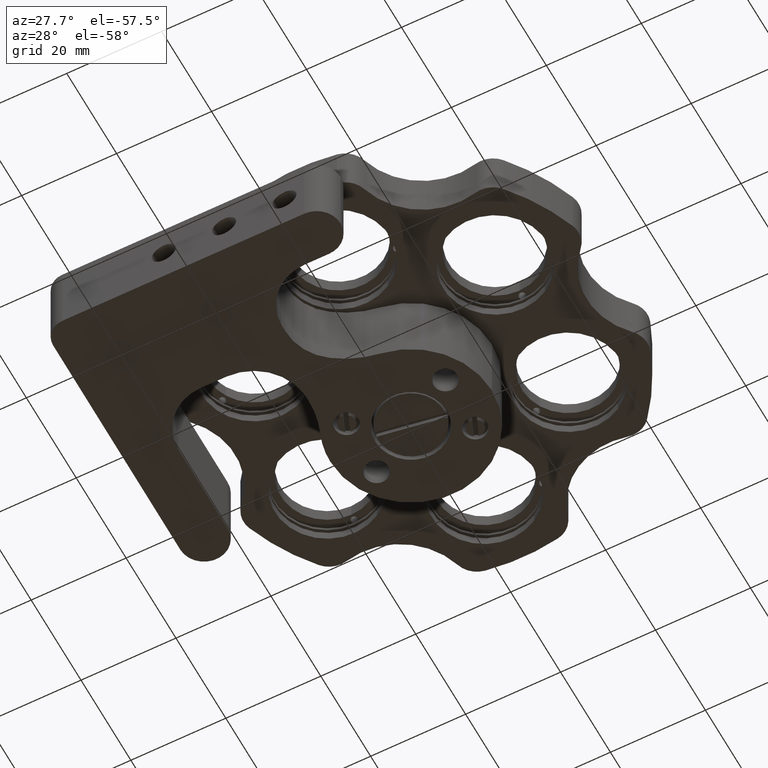
[diagram: clean part render]
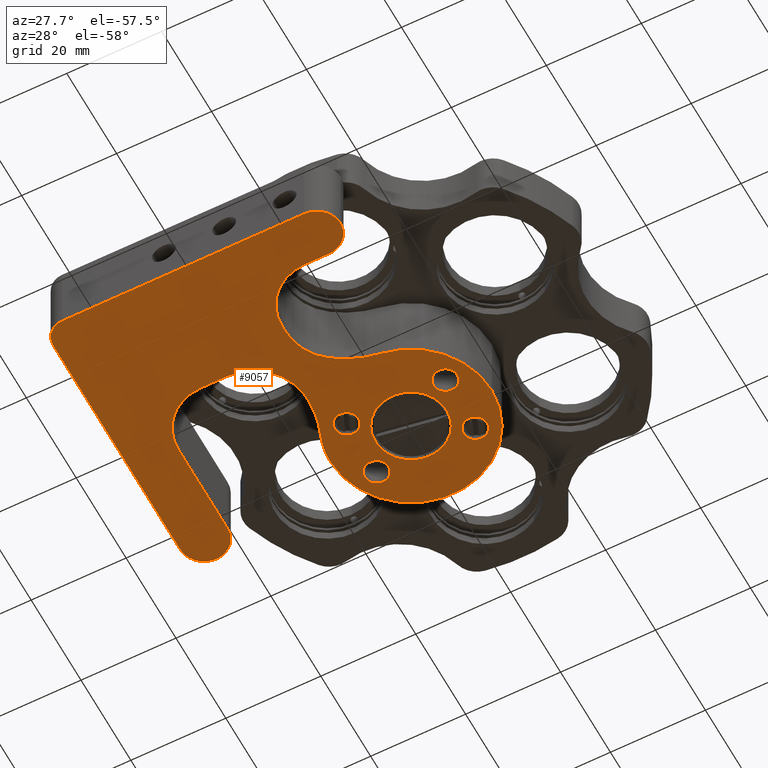
[diagram: same view with one face highlighted and labeled with its STEP entity id]
A machine part, auxiliary view. The second image highlights one B-rep face of the part: STEP entity #9057.
In plain terms, the highlighted planar face has unit normal (-0, 0, 1).
Its self-contained STEP definition (entity closure, byte-faithful):
#63 = ORIENTED_EDGE ( 'NONE', *, *, #2609, .T. ) ;
#192 = EDGE_LOOP ( 'NONE', ( #11659, #6894 ) ) ;
#197 = CARTESIAN_POINT ( 'NONE',  ( 2.398145116543167100, -16.83000000000002000, -16.00000000000000000 ) ) ;
#310 = EDGE_CURVE ( 'NONE', #6319, #8687, #5445, .T. ) ;
#334 = DIRECTION ( 'NONE',  ( 1.000000000000000000, 0.0000000000000000000, 0.0000000000000000000 ) ) ;
#422 = DIRECTION ( 'NONE',  ( -0.0000000000000000000, 0.0000000000000000000, 1.000000000000000000 ) ) ;
#460 = ORIENTED_EDGE ( 'NONE', *, *, #5215, .T. ) ;
#523 = AXIS2_PLACEMENT_3D ( 'NONE', #4940, #15066, #6662 ) ;
#709 = VECTOR ( 'NONE', #2451, 1000.000000000000000 ) ;
#846 = CARTESIAN_POINT ( 'NONE',  ( -12.89230484541325300, 6.000000000000015100, -16.00000000000000000 ) ) ;
#884 = AXIS2_PLACEMENT_3D ( 'NONE', #13796, #1732, #12693 ) ;
#964 = VERTEX_POINT ( 'NONE', #2197 ) ;
#995 = EDGE_CURVE ( 'NONE', #3702, #964, #6166, .T. ) ;
#1037 = DIRECTION ( 'NONE',  ( -0.0000000000000000000, 0.0000000000000000000, 1.000000000000000000 ) ) ;
#1073 = EDGE_CURVE ( 'NONE', #2167, #8659, #6355, .T. ) ;
#1101 = ORIENTED_EDGE ( 'NONE', *, *, #3700, .T. ) ;
#1111 = CIRCLE ( 'NONE', #11031, 9.999999999999998200 ) ;
#1204 = VECTOR ( 'NONE', #9547, 1000.000000000000000 ) ;
#1334 = EDGE_LOOP ( 'NONE', ( #1101, #63 ) ) ;
#1365 = ORIENTED_EDGE ( 'NONE', *, *, #11277, .F. ) ;
#1473 = CARTESIAN_POINT ( 'NONE',  ( -14.33791815153540700, -13.78068855385882700, -16.00000000000000000 ) ) ;
#1507 = AXIS2_PLACEMENT_3D ( 'NONE', #5364, #4211, #15018 ) ;
#1562 = CARTESIAN_POINT ( 'NONE',  ( 10.39230484541325700, -6.000000000000015100, -16.00000000000000000 ) ) ;
#1631 = CARTESIAN_POINT ( 'NONE',  ( -17.00000000000002100, 2.344068235651494100E-014, -16.00000000000000000 ) ) ;
#1659 = VERTEX_POINT ( 'NONE', #9927 ) ;
#1730 = CARTESIAN_POINT ( 'NONE',  ( -50.79999999999994700, -91.60983450373436200, -16.00000000000000000 ) ) ;
#1732 = DIRECTION ( 'NONE',  ( -0.0000000000000000000, -0.0000000000000000000, 1.000000000000000000 ) ) ;
#1836 = CARTESIAN_POINT ( 'NONE',  ( -40.80000000000005400, 4.200000000000009100, -16.00000000000000000 ) ) ;
#1891 = DIRECTION ( 'NONE',  ( 1.000000000000000000, 0.0000000000000000000, 0.0000000000000000000 ) ) ;
#1899 = ORIENTED_EDGE ( 'NONE', *, *, #10775, .F. ) ;
#1958 = CARTESIAN_POINT ( 'NONE',  ( 4.199999999999978000, -50.79999999999997600, -16.00000000000000000 ) ) ;
#1979 = DIRECTION ( 'NONE',  ( 1.000000000000000000, 0.0000000000000000000, 0.0000000000000000000 ) ) ;
#2011 = DIRECTION ( 'NONE',  ( -0.0000000000000000000, 0.0000000000000000000, 1.000000000000000000 ) ) ;
#2099 = DIRECTION ( 'NONE',  ( -0.0000000000000000000, 0.0000000000000000000, 1.000000000000000000 ) ) ;
#2150 = ORIENTED_EDGE ( 'NONE', *, *, #15518, .T. ) ;
#2167 = VERTEX_POINT ( 'NONE', #13925 ) ;
#2197 = CARTESIAN_POINT ( 'NONE',  ( -11.00000000000002300, -29.54287285833695600, -16.00000000000000000 ) ) ;
#2299 = FACE_OUTER_BOUND ( 'NONE', #10351, .T. ) ;
#2311 = FACE_BOUND ( 'NONE', #13762, .T. ) ;
#2338 = CARTESIAN_POINT ( 'NONE',  ( -16.91161726340148500, -91.60983450373431900, -16.00000000000000000 ) ) ;
#2339 = VECTOR ( 'NONE', #3246, 1000.000000000000000 ) ;
#2413 = EDGE_CURVE ( 'NONE', #8687, #6319, #10198, .T. ) ;
#2451 = DIRECTION ( 'NONE',  ( 0.0000000000000000000, 1.000000000000000000, -0.0000000000000000000 ) ) ;
#2517 = CIRCLE ( 'NONE', #7314, 11.00000000000001100 ) ;
#2524 = EDGE_CURVE ( 'NONE', #14079, #8833, #8132, .T. ) ;
#2566 = VERTEX_POINT ( 'NONE', #1836 ) ;
#2609 = EDGE_CURVE ( 'NONE', #9881, #7876, #12266, .T. ) ;
#2656 = DIRECTION ( 'NONE',  ( -0.0000000000000000000, 0.0000000000000000000, 1.000000000000000000 ) ) ;
#2763 = VERTEX_POINT ( 'NONE', #11732 ) ;
#3105 = EDGE_CURVE ( 'NONE', #1659, #14371, #9805, .T. ) ;
#3130 = DIRECTION ( 'NONE',  ( -0.0000000000000000000, 0.0000000000000000000, 1.000000000000000000 ) ) ;
#3151 = AXIS2_PLACEMENT_3D ( 'NONE', #12345, #11232, #12295 ) ;
#3236 = AXIS2_PLACEMENT_3D ( 'NONE', #9312, #2099, #14263 ) ;
#3246 = DIRECTION ( 'NONE',  ( 0.0000000000000000000, -1.000000000000000000, 0.0000000000000000000 ) ) ;
#3254 = ORIENTED_EDGE ( 'NONE', *, *, #14656, .T. ) ;
#3261 = CIRCLE ( 'NONE', #8105, 17.00000000000003600 ) ;
#3310 = CARTESIAN_POINT ( 'NONE',  ( -15.77688131286762600, -6.331667713935137200, -16.00000000000000000 ) ) ;
#3362 = DIRECTION ( 'NONE',  ( 1.000000000000000000, 0.0000000000000000000, 0.0000000000000000000 ) ) ;
#3423 = FACE_BOUND ( 'NONE', #4272, .T. ) ;
#3434 = DIRECTION ( 'NONE',  ( 1.000000000000000000, 0.0000000000000000000, 0.0000000000000000000 ) ) ;
#3605 = CARTESIAN_POINT ( 'NONE',  ( -11.00000000000002300, -91.60983450373431900, -16.00000000000000000 ) ) ;
#3650 = CIRCLE ( 'NONE', #10840, 2.499999999999996900 ) ;
#3654 = CARTESIAN_POINT ( 'NONE',  ( -16.91161726340155300, -40.80000000000001100, -16.00000000000000000 ) ) ;
#3657 = DIRECTION ( 'NONE',  ( -0.0000000000000000000, -0.0000000000000000000, 1.000000000000000000 ) ) ;
#3669 = AXIS2_PLACEMENT_3D ( 'NONE', #5195, #13505, #13617 ) ;
#3672 = CARTESIAN_POINT ( 'NONE',  ( -7.500000000000000000, 0.0000000000000000000, -16.00000000000000000 ) ) ;
#3700 = EDGE_CURVE ( 'NONE', #7876, #9881, #13170, .T. ) ;
#3702 = VERTEX_POINT ( 'NONE', #7183 ) ;
#3736 = EDGE_CURVE ( 'NONE', #1659, #11495, #14501, .T. ) ;
#3755 = CARTESIAN_POINT ( 'NONE',  ( -1.000000000000021800, -40.79999999999999000, -16.00000000000000000 ) ) ;
#3849 = EDGE_CURVE ( 'NONE', #2763, #11495, #1111, .T. ) ;
#3911 = VERTEX_POINT ( 'NONE', #1958 ) ;
#4047 = CARTESIAN_POINT ( 'NONE',  ( 4.199999999999981500, -45.79999999999999000, -16.00000000000000000 ) ) ;
#4076 = AXIS2_PLACEMENT_3D ( 'NONE', #9096, #12506, #7665 ) ;
#4211 = DIRECTION ( 'NONE',  ( -0.0000000000000000000, -0.0000000000000000000, 1.000000000000000000 ) ) ;
#4272 = EDGE_LOOP ( 'NONE', ( #11537, #12151 ) ) ;
#4298 = DIRECTION ( 'NONE',  ( 1.000000000000000000, 2.721134864277345600E-016, 0.0000000000000000000 ) ) ;
#4592 = CARTESIAN_POINT ( 'NONE',  ( -30.80000000000005800, -25.64999999999993500, -16.00000000000000000 ) ) ;
#4628 = VERTEX_POINT ( 'NONE', #9700 ) ;
#4677 = VERTEX_POINT ( 'NONE', #6521 ) ;
#4828 = EDGE_CURVE ( 'NONE', #4860, #12820, #3650, .T. ) ;
#4860 = VERTEX_POINT ( 'NONE', #8270 ) ;
#4869 = DIRECTION ( 'NONE',  ( 0.0000000000000000000, 0.0000000000000000000, -1.000000000000000000 ) ) ;
#4940 = CARTESIAN_POINT ( 'NONE',  ( 0.0000000000000000000, 0.0000000000000000000, -16.00000000000000000 ) ) ;
#4973 = VERTEX_POINT ( 'NONE', #3672 ) ;
#5076 = AXIS2_PLACEMENT_3D ( 'NONE', #7241, #3657, #13592 ) ;
#5104 = FACE_BOUND ( 'NONE', #10155, .T. ) ;
#5195 = CARTESIAN_POINT ( 'NONE',  ( -34.33791815153536900, -13.78068855385882700, -16.00000000000000000 ) ) ;
#5215 = EDGE_CURVE ( 'NONE', #10152, #11450, #15523, .T. ) ;
#5233 = DIRECTION ( 'NONE',  ( -0.0000000000000000000, 0.0000000000000000000, 1.000000000000000000 ) ) ;
#5364 = CARTESIAN_POINT ( 'NONE',  ( -10.39230484541325700, 6.000000000000015100, -16.00000000000000000 ) ) ;
#5371 = EDGE_CURVE ( 'NONE', #10979, #964, #2517, .T. ) ;
#5445 = CIRCLE ( 'NONE', #884, 2.499999999999996900 ) ;
#5488 = FACE_BOUND ( 'NONE', #1334, .T. ) ;
#5637 = CARTESIAN_POINT ( 'NONE',  ( 10.39230484541325700, 6.000000000000015100, -16.00000000000000000 ) ) ;
#5660 = CARTESIAN_POINT ( 'NONE',  ( -16.91161726340149600, -50.79999999999998300, -16.00000000000000000 ) ) ;
#5721 = CARTESIAN_POINT ( 'NONE',  ( -40.80000000000005400, -91.60983450373431900, -16.00000000000000000 ) ) ;
#5909 = CIRCLE ( 'NONE', #12986, 3.999999999999996400 ) ;
#5915 = AXIS2_PLACEMENT_3D ( 'NONE', #14147, #8096, #1979 ) ;
#6166 = LINE ( 'NONE', #3605, #709 ) ;
#6178 = CARTESIAN_POINT ( 'NONE',  ( 4.199999999999978000, -40.79999999999998300, -16.00000000000000000 ) ) ;
#6256 = DIRECTION ( 'NONE',  ( 1.000000000000000000, 0.0000000000000000000, 0.0000000000000000000 ) ) ;
#6319 = VERTEX_POINT ( 'NONE', #7654 ) ;
#6339 = CARTESIAN_POINT ( 'NONE',  ( -10.39230484541325700, -6.000000000000015100, -16.00000000000000000 ) ) ;
#6355 = CIRCLE ( 'NONE', #12412, 2.499999999999996900 ) ;
#6387 = CARTESIAN_POINT ( 'NONE',  ( -6.385338524956366300, -20.34111111111102200, -16.00000000000000000 ) ) ;
#6474 = DIRECTION ( 'NONE',  ( -0.0000000000000000000, 0.0000000000000000000, 1.000000000000000000 ) ) ;
#6484 = CARTESIAN_POINT ( 'NONE',  ( -16.91161726340140300, -25.64999999999994900, -16.00000000000000000 ) ) ;
#6518 = VERTEX_POINT ( 'NONE', #197 ) ;
#6521 = CARTESIAN_POINT ( 'NONE',  ( -46.80000000000000400, -50.79999999999999000, -16.00000000000000000 ) ) ;
#6546 = EDGE_CURVE ( 'NONE', #12557, #15196, #8395, .T. ) ;
#6558 = CARTESIAN_POINT ( 'NONE',  ( -7.892304845413259600, 6.000000000000015100, -16.00000000000000000 ) ) ;
#6584 = CARTESIAN_POINT ( 'NONE',  ( 7.892304845413259600, -6.000000000000015100, -16.00000000000000000 ) ) ;
#6599 = CARTESIAN_POINT ( 'NONE',  ( -7.892304845413259600, -6.000000000000015100, -16.00000000000000000 ) ) ;
#6623 = CARTESIAN_POINT ( 'NONE',  ( -14.43143337034554600, -15.71249176750572500, -16.00000000000000000 ) ) ;
#6662 = DIRECTION ( 'NONE',  ( -1.000000000000000000, 0.0000000000000000000, 0.0000000000000000000 ) ) ;
#6676 = ORIENTED_EDGE ( 'NONE', *, *, #7430, .T. ) ;
#6838 = ORIENTED_EDGE ( 'NONE', *, *, #3105, .T. ) ;
#6853 = CIRCLE ( 'NONE', #10518, 4.999999999999997300 ) ;
#6894 = ORIENTED_EDGE ( 'NONE', *, *, #1073, .T. ) ;
#6902 = CARTESIAN_POINT ( 'NONE',  ( -30.80000000000005400, -15.64999999999992800, -16.00000000000000000 ) ) ;
#6934 = DIRECTION ( 'NONE',  ( 1.000000000000000000, 0.0000000000000000000, 0.0000000000000000000 ) ) ;
#6986 = CARTESIAN_POINT ( 'NONE',  ( 4.199999999999981500, -45.79999999999999000, -16.00000000000000000 ) ) ;
#7013 = EDGE_CURVE ( 'NONE', #8833, #4677, #5909, .T. ) ;
#7015 = FACE_BOUND ( 'NONE', #192, .T. ) ;
#7035 = ORIENTED_EDGE ( 'NONE', *, *, #8677, .F. ) ;
#7110 = CARTESIAN_POINT ( 'NONE',  ( -46.80000000000000400, -46.79999999999999700, -16.00000000000000000 ) ) ;
#7183 = CARTESIAN_POINT ( 'NONE',  ( -11.00000000000002300, -30.79999999999998600, -16.00000000000000000 ) ) ;
#7241 = CARTESIAN_POINT ( 'NONE',  ( -10.39230484541325700, 6.000000000000015100, -16.00000000000000000 ) ) ;
#7273 = ORIENTED_EDGE ( 'NONE', *, *, #12232, .T. ) ;
#7314 = AXIS2_PLACEMENT_3D ( 'NONE', #14814, #422, #10011 ) ;
#7360 = DIRECTION ( 'NONE',  ( 1.000000000000000000, 0.0000000000000000000, 0.0000000000000000000 ) ) ;
#7390 = AXIS2_PLACEMENT_3D ( 'NONE', #8309, #9498, #3434 ) ;
#7430 = EDGE_CURVE ( 'NONE', #2566, #2763, #9491, .T. ) ;
#7562 = DIRECTION ( 'NONE',  ( -0.0000000000000000000, -0.0000000000000000000, 1.000000000000000000 ) ) ;
#7654 = CARTESIAN_POINT ( 'NONE',  ( 12.89230484541325300, -6.000000000000015100, -16.00000000000000000 ) ) ;
#7665 = DIRECTION ( 'NONE',  ( 1.000000000000000000, 0.0000000000000000000, 0.0000000000000000000 ) ) ;
#7831 = ORIENTED_EDGE ( 'NONE', *, *, #2524, .F. ) ;
#7862 = ORIENTED_EDGE ( 'NONE', *, *, #3736, .F. ) ;
#7876 = VERTEX_POINT ( 'NONE', #6558 ) ;
#7888 = ORIENTED_EDGE ( 'NONE', *, *, #3849, .T. ) ;
#7901 = DIRECTION ( 'NONE',  ( -0.0000000000000000000, -0.0000000000000000000, 1.000000000000000000 ) ) ;
#7916 = DIRECTION ( 'NONE',  ( -1.000000000000000000, 1.280238727658143600E-015, 0.0000000000000000000 ) ) ;
#7945 = CIRCLE ( 'NONE', #3236, 19.99999999999996100 ) ;
#7948 = EDGE_CURVE ( 'NONE', #13621, #11450, #13626, .T. ) ;
#8096 = DIRECTION ( 'NONE',  ( -0.0000000000000000000, 0.0000000000000000000, 1.000000000000000000 ) ) ;
#8105 = AXIS2_PLACEMENT_3D ( 'NONE', #11137, #5233, #13657 ) ;
#8120 = ORIENTED_EDGE ( 'NONE', *, *, #4828, .T. ) ;
#8132 = LINE ( 'NONE', #1730, #8525 ) ;
#8270 = CARTESIAN_POINT ( 'NONE',  ( -12.89230484541325300, -6.000000000000015100, -16.00000000000000000 ) ) ;
#8298 = DIRECTION ( 'NONE',  ( -0.0000000000000000000, 0.0000000000000000000, 1.000000000000000000 ) ) ;
#8309 = CARTESIAN_POINT ( 'NONE',  ( -25.37999999999998500, -14.64999999999992400, -16.00000000000000000 ) ) ;
#8395 = LINE ( 'NONE', #3654, #1204 ) ;
#8525 = VECTOR ( 'NONE', #9015, 1000.000000000000000 ) ;
#8659 = VERTEX_POINT ( 'NONE', #13688 ) ;
#8677 = EDGE_CURVE ( 'NONE', #2566, #14079, #10778, .T. ) ;
#8687 = VERTEX_POINT ( 'NONE', #6584 ) ;
#8811 = DIRECTION ( 'NONE',  ( 1.000000000000000000, 0.0000000000000000000, 0.0000000000000000000 ) ) ;
#8823 = AXIS2_PLACEMENT_3D ( 'NONE', #5637, #11747, #3362 ) ;
#8833 = VERTEX_POINT ( 'NONE', #9124 ) ;
#9015 = DIRECTION ( 'NONE',  ( 1.088453945710937700E-015, -1.000000000000000000, 0.0000000000000000000 ) ) ;
#9057 = ADVANCED_FACE ( 'NONE', ( #7015, #3423, #2311, #5488, #5104, #2299 ), #15197, .F. ) ;
#9083 = AXIS2_PLACEMENT_3D ( 'NONE', #13799, #6474, #8811 ) ;
#9096 = CARTESIAN_POINT ( 'NONE',  ( -34.33791815153536900, -13.78068855385882700, -16.00000000000000000 ) ) ;
#9124 = CARTESIAN_POINT ( 'NONE',  ( -50.79999999999999700, -46.79999999999999700, -16.00000000000000000 ) ) ;
#9312 = CARTESIAN_POINT ( 'NONE',  ( 5.219492312476295300, -36.62999999999998800, -16.00000000000000000 ) ) ;
#9350 = ORIENTED_EDGE ( 'NONE', *, *, #13697, .F. ) ;
#9391 = AXIS2_PLACEMENT_3D ( 'NONE', #1562, #14809, #6256 ) ;
#9447 = CARTESIAN_POINT ( 'NONE',  ( 7.500000000000000000, 9.184850993605147900E-016, -16.00000000000000000 ) ) ;
#9475 = DIRECTION ( 'NONE',  ( 1.000000000000000000, 0.0000000000000000000, 0.0000000000000000000 ) ) ;
#9484 = CIRCLE ( 'NONE', #523, 7.500000000000000000 ) ;
#9491 = LINE ( 'NONE', #5721, #2339 ) ;
#9498 = DIRECTION ( 'NONE',  ( -0.0000000000000000000, 0.0000000000000000000, 1.000000000000000000 ) ) ;
#9547 = DIRECTION ( 'NONE',  ( -1.000000000000000000, -1.334402673828312100E-015, 0.0000000000000000000 ) ) ;
#9700 = CARTESIAN_POINT ( 'NONE',  ( 9.199999999999979700, -45.79999999999999000, -16.00000000000000000 ) ) ;
#9745 = CARTESIAN_POINT ( 'NONE',  ( -50.80000000000005400, 4.200000000000009100, -16.00000000000000000 ) ) ;
#9805 = CIRCLE ( 'NONE', #7390, 11.00000000000001600 ) ;
#9824 = DIRECTION ( 'NONE',  ( 1.000000000000000000, 0.0000000000000000000, 0.0000000000000000000 ) ) ;
#9829 = CIRCLE ( 'NONE', #3151, 17.00000000000003600 ) ;
#9881 = VERTEX_POINT ( 'NONE', #846 ) ;
#9916 = AXIS2_PLACEMENT_3D ( 'NONE', #14568, #4869, #14619 ) ;
#9927 = CARTESIAN_POINT ( 'NONE',  ( -25.37999999999998500, -25.64999999999994200, -16.00000000000000000 ) ) ;
#10011 = DIRECTION ( 'NONE',  ( 1.000000000000000000, 0.0000000000000000000, 0.0000000000000000000 ) ) ;
#10152 = VERTEX_POINT ( 'NONE', #1473 ) ;
#10155 = EDGE_LOOP ( 'NONE', ( #11597, #1365 ) ) ;
#10198 = CIRCLE ( 'NONE', #9391, 2.499999999999996900 ) ;
#10340 = CARTESIAN_POINT ( 'NONE',  ( 17.00000000000005000, 2.135878279796443700E-014, -16.00000000000000000 ) ) ;
#10351 = EDGE_LOOP ( 'NONE', ( #7831, #7035, #6676, #7888, #7862, #6838, #7273, #460, #15435, #10841, #12563, #11294, #14988, #11764, #2150, #14665, #1899, #9350, #13028, #13908 ) ) ;
#10364 = VECTOR ( 'NONE', #7916, 1000.000000000000000 ) ;
#10410 = DIRECTION ( 'NONE',  ( 1.000000000000000000, 0.0000000000000000000, 0.0000000000000000000 ) ) ;
#10439 = DIRECTION ( 'NONE',  ( 1.000000000000000000, 0.0000000000000000000, 0.0000000000000000000 ) ) ;
#10518 = AXIS2_PLACEMENT_3D ( 'NONE', #6986, #12940, #6934 ) ;
#10531 = CIRCLE ( 'NONE', #11855, 10.00000000000000200 ) ;
#10586 = LINE ( 'NONE', #5660, #12283 ) ;
#10659 = EDGE_CURVE ( 'NONE', #6518, #10979, #7945, .T. ) ;
#10775 = EDGE_CURVE ( 'NONE', #4628, #12557, #6853, .T. ) ;
#10778 = CIRCLE ( 'NONE', #9083, 4.999999999999997300 ) ;
#10840 = AXIS2_PLACEMENT_3D ( 'NONE', #15122, #7901, #1891 ) ;
#10841 = ORIENTED_EDGE ( 'NONE', *, *, #10960, .F. ) ;
#10960 = EDGE_CURVE ( 'NONE', #11311, #13621, #3261, .T. ) ;
#10979 = VERTEX_POINT ( 'NONE', #6387 ) ;
#11031 = AXIS2_PLACEMENT_3D ( 'NONE', #6902, #2011, #10439 ) ;
#11137 = CARTESIAN_POINT ( 'NONE',  ( 1.431146867680865900E-014, 2.135878279796443700E-014, -16.00000000000000000 ) ) ;
#11232 = DIRECTION ( 'NONE',  ( -0.0000000000000000000, 0.0000000000000000000, 1.000000000000000000 ) ) ;
#11277 = EDGE_CURVE ( 'NONE', #14898, #4973, #9484, .T. ) ;
#11294 = ORIENTED_EDGE ( 'NONE', *, *, #10659, .T. ) ;
#11311 = VERTEX_POINT ( 'NONE', #10340 ) ;
#11445 = AXIS2_PLACEMENT_3D ( 'NONE', #6339, #7562, #334 ) ;
#11450 = VERTEX_POINT ( 'NONE', #3310 ) ;
#11469 = EDGE_CURVE ( 'NONE', #8659, #2167, #15336, .T. ) ;
#11495 = VERTEX_POINT ( 'NONE', #4592 ) ;
#11537 = ORIENTED_EDGE ( 'NONE', *, *, #310, .T. ) ;
#11597 = ORIENTED_EDGE ( 'NONE', *, *, #12522, .F. ) ;
#11659 = ORIENTED_EDGE ( 'NONE', *, *, #11469, .T. ) ;
#11732 = CARTESIAN_POINT ( 'NONE',  ( -40.80000000000005400, -15.64999999999992800, -16.00000000000000000 ) ) ;
#11747 = DIRECTION ( 'NONE',  ( -0.0000000000000000000, -0.0000000000000000000, 1.000000000000000000 ) ) ;
#11764 = ORIENTED_EDGE ( 'NONE', *, *, #995, .F. ) ;
#11855 = AXIS2_PLACEMENT_3D ( 'NONE', #14784, #2656, #7360 ) ;
#12151 = ORIENTED_EDGE ( 'NONE', *, *, #2413, .T. ) ;
#12232 = EDGE_CURVE ( 'NONE', #14371, #10152, #14554, .T. ) ;
#12266 = CIRCLE ( 'NONE', #1507, 2.499999999999996900 ) ;
#12283 = VECTOR ( 'NONE', #4298, 1000.000000000000000 ) ;
#12295 = DIRECTION ( 'NONE',  ( 1.000000000000000000, 0.0000000000000000000, 0.0000000000000000000 ) ) ;
#12345 = CARTESIAN_POINT ( 'NONE',  ( 1.431146867680865900E-014, 2.135878279796443700E-014, -16.00000000000000000 ) ) ;
#12390 = EDGE_CURVE ( 'NONE', #4677, #3911, #10586, .T. ) ;
#12412 = AXIS2_PLACEMENT_3D ( 'NONE', #14560, #13383, #9824 ) ;
#12506 = DIRECTION ( 'NONE',  ( -0.0000000000000000000, 0.0000000000000000000, 1.000000000000000000 ) ) ;
#12522 = EDGE_CURVE ( 'NONE', #4973, #14898, #13407, .T. ) ;
#12556 = AXIS2_PLACEMENT_3D ( 'NONE', #4047, #3130, #10410 ) ;
#12557 = VERTEX_POINT ( 'NONE', #6178 ) ;
#12563 = ORIENTED_EDGE ( 'NONE', *, *, #12620, .F. ) ;
#12620 = EDGE_CURVE ( 'NONE', #6518, #11311, #9829, .T. ) ;
#12693 = DIRECTION ( 'NONE',  ( 1.000000000000000000, 0.0000000000000000000, 0.0000000000000000000 ) ) ;
#12820 = VERTEX_POINT ( 'NONE', #6599 ) ;
#12940 = DIRECTION ( 'NONE',  ( -0.0000000000000000000, 0.0000000000000000000, 1.000000000000000000 ) ) ;
#12986 = AXIS2_PLACEMENT_3D ( 'NONE', #7110, #1037, #9475 ) ;
#13028 = ORIENTED_EDGE ( 'NONE', *, *, #12390, .F. ) ;
#13170 = CIRCLE ( 'NONE', #5076, 2.499999999999996900 ) ;
#13306 = AXIS2_PLACEMENT_3D ( 'NONE', #2338, #8298, #15563 ) ;
#13346 = CIRCLE ( 'NONE', #11445, 2.499999999999996900 ) ;
#13375 = CIRCLE ( 'NONE', #12556, 4.999999999999997300 ) ;
#13383 = DIRECTION ( 'NONE',  ( -0.0000000000000000000, -0.0000000000000000000, 1.000000000000000000 ) ) ;
#13407 = CIRCLE ( 'NONE', #9916, 7.500000000000000000 ) ;
#13505 = DIRECTION ( 'NONE',  ( -0.0000000000000000000, 0.0000000000000000000, 1.000000000000000000 ) ) ;
#13592 = DIRECTION ( 'NONE',  ( 1.000000000000000000, 0.0000000000000000000, 0.0000000000000000000 ) ) ;
#13617 = DIRECTION ( 'NONE',  ( 1.000000000000000000, 0.0000000000000000000, 0.0000000000000000000 ) ) ;
#13621 = VERTEX_POINT ( 'NONE', #1631 ) ;
#13626 = CIRCLE ( 'NONE', #5915, 17.00000000000003600 ) ;
#13657 = DIRECTION ( 'NONE',  ( 1.000000000000000000, 0.0000000000000000000, 0.0000000000000000000 ) ) ;
#13688 = CARTESIAN_POINT ( 'NONE',  ( 12.89230484541325300, 6.000000000000015100, -16.00000000000000000 ) ) ;
#13697 = EDGE_CURVE ( 'NONE', #3911, #4628, #13375, .T. ) ;
#13762 = EDGE_LOOP ( 'NONE', ( #3254, #8120 ) ) ;
#13796 = CARTESIAN_POINT ( 'NONE',  ( 10.39230484541325700, -6.000000000000015100, -16.00000000000000000 ) ) ;
#13799 = CARTESIAN_POINT ( 'NONE',  ( -45.80000000000005400, 4.200000000000017100, -16.00000000000000000 ) ) ;
#13908 = ORIENTED_EDGE ( 'NONE', *, *, #7013, .F. ) ;
#13925 = CARTESIAN_POINT ( 'NONE',  ( 7.892304845413259600, 6.000000000000015100, -16.00000000000000000 ) ) ;
#14079 = VERTEX_POINT ( 'NONE', #9745 ) ;
#14147 = CARTESIAN_POINT ( 'NONE',  ( 1.431146867680865900E-014, 2.135878279796443700E-014, -16.00000000000000000 ) ) ;
#14263 = DIRECTION ( 'NONE',  ( 1.000000000000000000, 0.0000000000000000000, 0.0000000000000000000 ) ) ;
#14371 = VERTEX_POINT ( 'NONE', #6623 ) ;
#14501 = LINE ( 'NONE', #6484, #10364 ) ;
#14554 = CIRCLE ( 'NONE', #3669, 19.99999999999996100 ) ;
#14560 = CARTESIAN_POINT ( 'NONE',  ( 10.39230484541325700, 6.000000000000015100, -16.00000000000000000 ) ) ;
#14568 = CARTESIAN_POINT ( 'NONE',  ( 0.0000000000000000000, 0.0000000000000000000, -16.00000000000000000 ) ) ;
#14619 = DIRECTION ( 'NONE',  ( -1.000000000000000000, 0.0000000000000000000, 0.0000000000000000000 ) ) ;
#14656 = EDGE_CURVE ( 'NONE', #12820, #4860, #13346, .T. ) ;
#14665 = ORIENTED_EDGE ( 'NONE', *, *, #6546, .F. ) ;
#14784 = CARTESIAN_POINT ( 'NONE',  ( -1.000000000000024200, -30.79999999999998600, -16.00000000000000000 ) ) ;
#14809 = DIRECTION ( 'NONE',  ( -0.0000000000000000000, -0.0000000000000000000, 1.000000000000000000 ) ) ;
#14814 = CARTESIAN_POINT ( 'NONE',  ( -0.002681564368387998100, -29.29999999999997900, -16.00000000000000000 ) ) ;
#14898 = VERTEX_POINT ( 'NONE', #9447 ) ;
#14988 = ORIENTED_EDGE ( 'NONE', *, *, #5371, .T. ) ;
#15018 = DIRECTION ( 'NONE',  ( 1.000000000000000000, 0.0000000000000000000, 0.0000000000000000000 ) ) ;
#15066 = DIRECTION ( 'NONE',  ( 0.0000000000000000000, 0.0000000000000000000, -1.000000000000000000 ) ) ;
#15122 = CARTESIAN_POINT ( 'NONE',  ( -10.39230484541325700, -6.000000000000015100, -16.00000000000000000 ) ) ;
#15196 = VERTEX_POINT ( 'NONE', #3755 ) ;
#15197 = PLANE ( 'NONE',  #13306 ) ;
#15336 = CIRCLE ( 'NONE', #8823, 2.499999999999996900 ) ;
#15435 = ORIENTED_EDGE ( 'NONE', *, *, #7948, .F. ) ;
#15518 = EDGE_CURVE ( 'NONE', #3702, #15196, #10531, .T. ) ;
#15523 = CIRCLE ( 'NONE', #4076, 19.99999999999996100 ) ;
#15563 = DIRECTION ( 'NONE',  ( 1.000000000000000000, 0.0000000000000000000, 0.0000000000000000000 ) ) ;